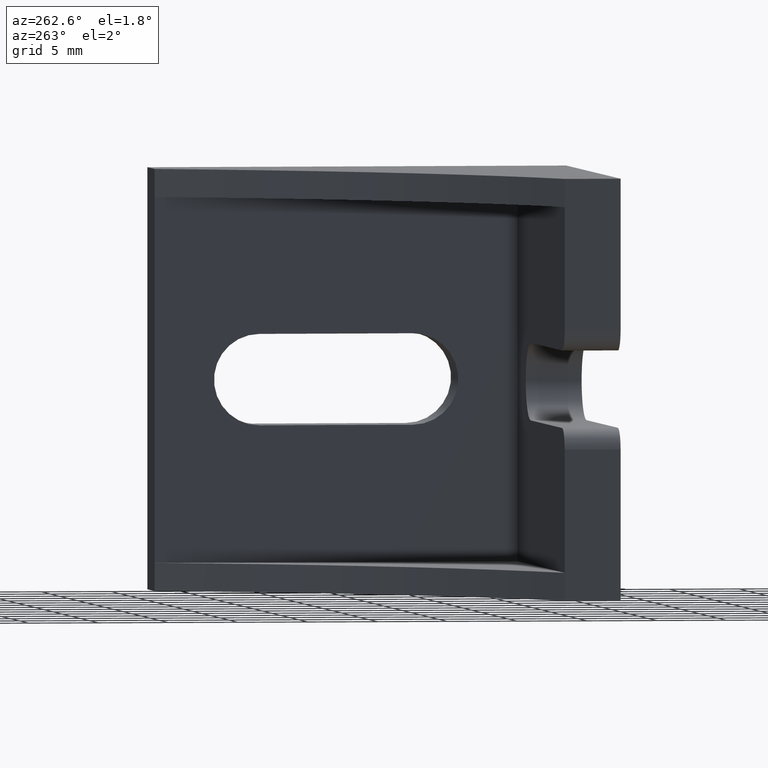
[diagram: clean part render]
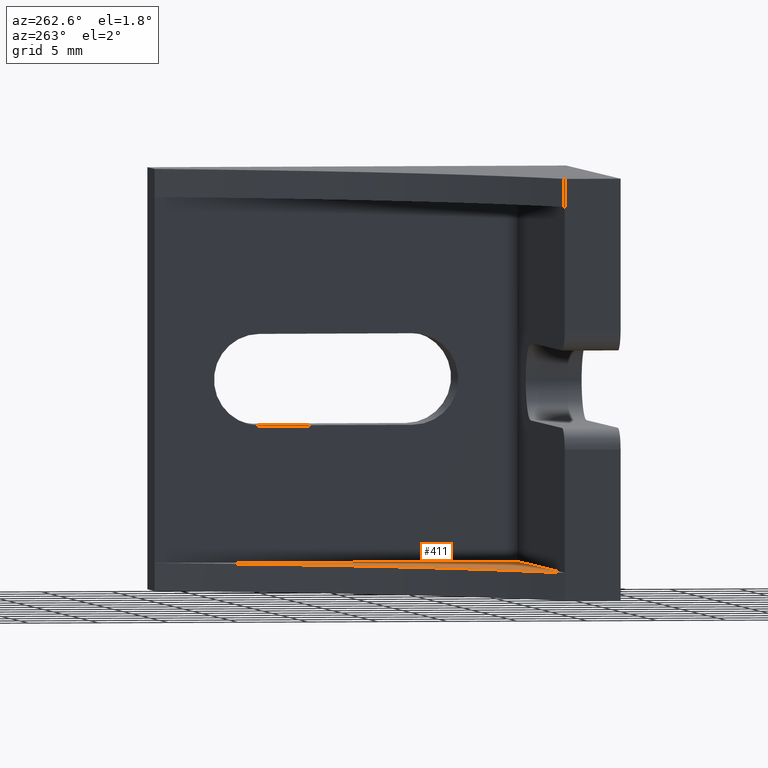
[diagram: same view with one face highlighted and labeled with its STEP entity id]
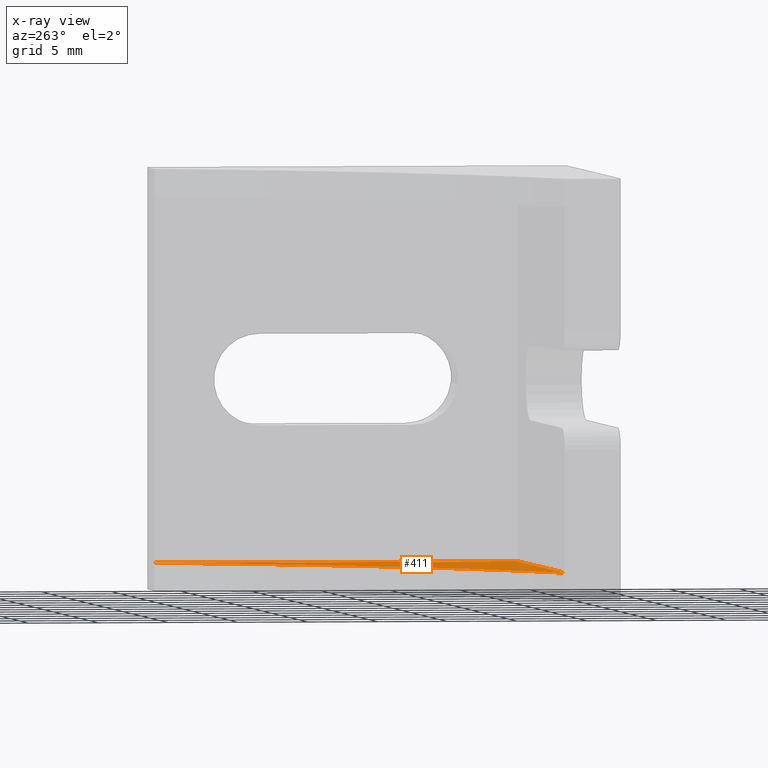
[diagram: x-ray of the same camera — body ghosted, the highlighted face saturated]
A machine part, auxiliary view. The second image highlights one B-rep face of the part: STEP entity #411.
The next image is the same camera in x-ray: the body ghosted, the highlighted face saturated — about 0% of this face is hidden behind the body in this view.
In plain terms, the highlighted planar face has unit normal (0, -0, -1).
Its self-contained STEP definition (entity closure, byte-faithful):
#26=PLANE('',#447);
#46=FACE_OUTER_BOUND('',#66,.T.);
#66=EDGE_LOOP('',(#335,#336,#337,#338));
#88=LINE('',#610,#132);
#108=LINE('',#666,#152);
#109=LINE('',#668,#153);
#132=VECTOR('',#486,26.);
#152=VECTOR('',#542,0.00205758755085661);
#153=VECTOR('',#545,25.9979424124491);
#176=CIRCLE('',#448,50.);
#183=VERTEX_POINT('',#588);
#192=VERTEX_POINT('',#608);
#209=VERTEX_POINT('',#664);
#210=VERTEX_POINT('',#665);
#232=EDGE_CURVE('',#183,#192,#88,.T.);
#259=EDGE_CURVE('',#209,#210,#108,.T.);
#260=EDGE_CURVE('',#183,#209,#176,.T.);
#261=EDGE_CURVE('',#192,#210,#109,.T.);
#335=ORIENTED_EDGE('',*,*,#259,.F.);
#336=ORIENTED_EDGE('',*,*,#260,.F.);
#337=ORIENTED_EDGE('',*,*,#232,.T.);
#338=ORIENTED_EDGE('',*,*,#261,.T.);
#411=ADVANCED_FACE('',(#46),#26,.F.);
#447=AXIS2_PLACEMENT_3D('',#663,#540,#541);
#448=AXIS2_PLACEMENT_3D('',#667,#543,#544);
#486=DIRECTION('',(1.,0.,0.));
#540=DIRECTION('center_axis',(0.,-4.2700885562506E-016,-1.));
#541=DIRECTION('ref_axis',(0.,1.,-4.44089209850063E-016));
#542=DIRECTION('',(1.,0.,0.));
#543=DIRECTION('center_axis',(0.,4.2700885562506E-016,1.));
#544=DIRECTION('ref_axis',(-1.,0.,0.));
#545=DIRECTION('',(0.,1.,-4.2700885562506E-016));
#588=CARTESIAN_POINT('',(-15.,-10.9979424124491,2.00000000000001));
#608=CARTESIAN_POINT('',(11.,-10.9979424124491,2.00000000000001));
#610=CARTESIAN_POINT('',(-15.,-10.9979424124491,2.00000000000001));
#663=CARTESIAN_POINT('Origin',(-15.,-10.9979424124491,2.00000000000001));
#664=CARTESIAN_POINT('',(10.9979424124491,15.,2.));
#665=CARTESIAN_POINT('',(11.,15.,2.));
#666=CARTESIAN_POINT('',(0.,15.,2.));
#667=CARTESIAN_POINT('Origin',(-34.88,34.88,2.00000000000001));
#668=CARTESIAN_POINT('',(11.,15.0020575875509,2.));